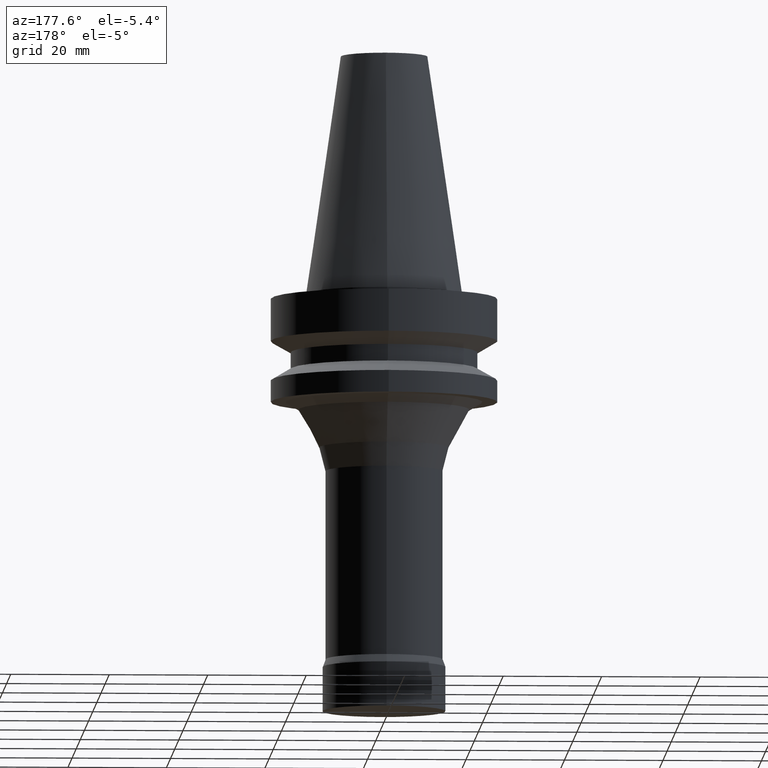
[diagram: clean part render]
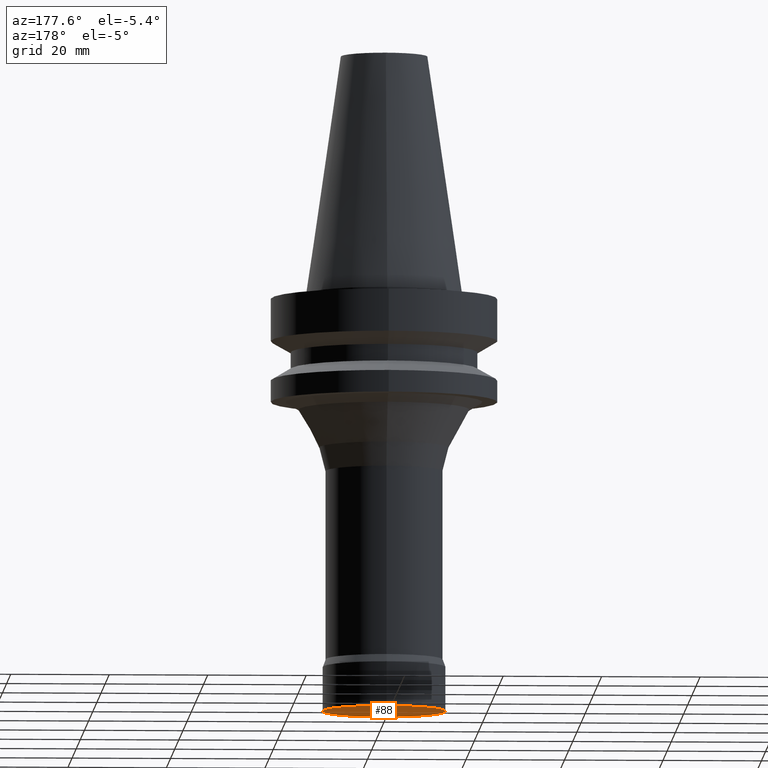
[diagram: same view with one face highlighted and labeled with its STEP entity id]
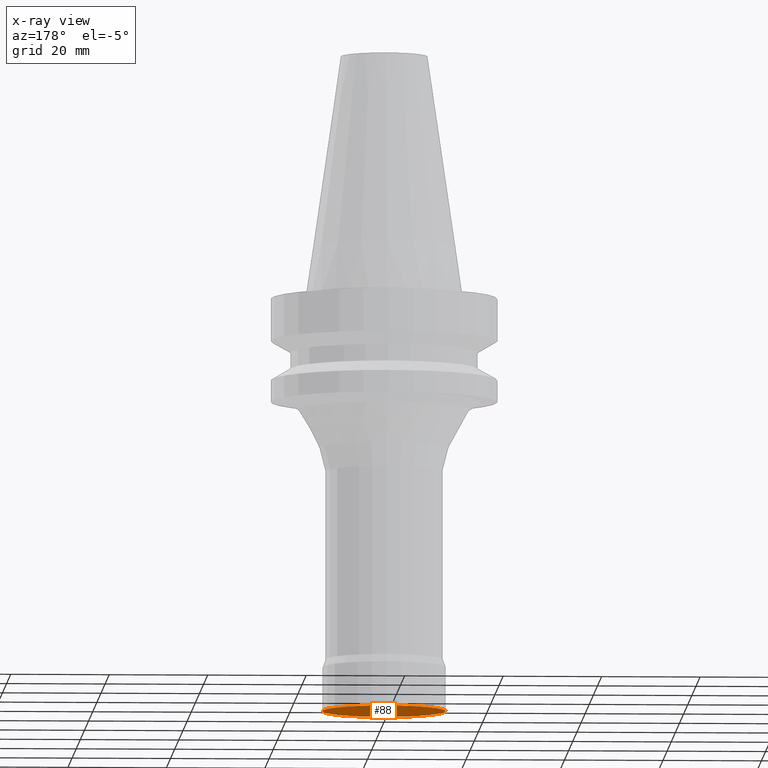
[diagram: x-ray of the same camera — body ghosted, the highlighted face saturated]
A machine part, auxiliary view. The second image highlights one B-rep face of the part: STEP entity #88.
The next image is the same camera in x-ray: the body ghosted, the highlighted face saturated — about 0% of this face is hidden behind the body in this view.
In plain terms, the highlighted planar face has unit normal (0, 0, -1).
Its self-contained STEP definition (entity closure, byte-faithful):
#88=ADVANCED_FACE('',(#132),#133,.T.);
#132=FACE_OUTER_BOUND('',#181,.T.);
#133=PLANE('',#182);
#181=EDGE_LOOP('',(#256));
#182=AXIS2_PLACEMENT_3D('',#257,#258,#259);
#256=ORIENTED_EDGE('',*,*,#287,.T.);
#257=CARTESIAN_POINT('',(5.20474889637625E-015,6.25000000000001,-85.0));
#258=DIRECTION('',(6.12323399573677E-017,1.22464679914735E-016,-1.0));
#259=DIRECTION('',(-1.23259516440783E-032,1.0,1.22464679914735E-016));
#287=EDGE_CURVE('',#316,#316,#317,.T.);
#316=VERTEX_POINT('',#348);
#317=CIRCLE('',#349,12.5);
#348=CARTESIAN_POINT('',(5.20474889637625E-015,12.5,-85.0));
#349=AXIS2_PLACEMENT_3D('',#393,#394,#395);
#393=CARTESIAN_POINT('',(5.20474889637625E-015,1.04094977927525E-014,-85.0));
#394=DIRECTION('',(6.12323399573677E-017,1.22464679914735E-016,-1.0));
#395=DIRECTION('',(-1.23259516440783E-032,1.0,1.22464679914735E-016));